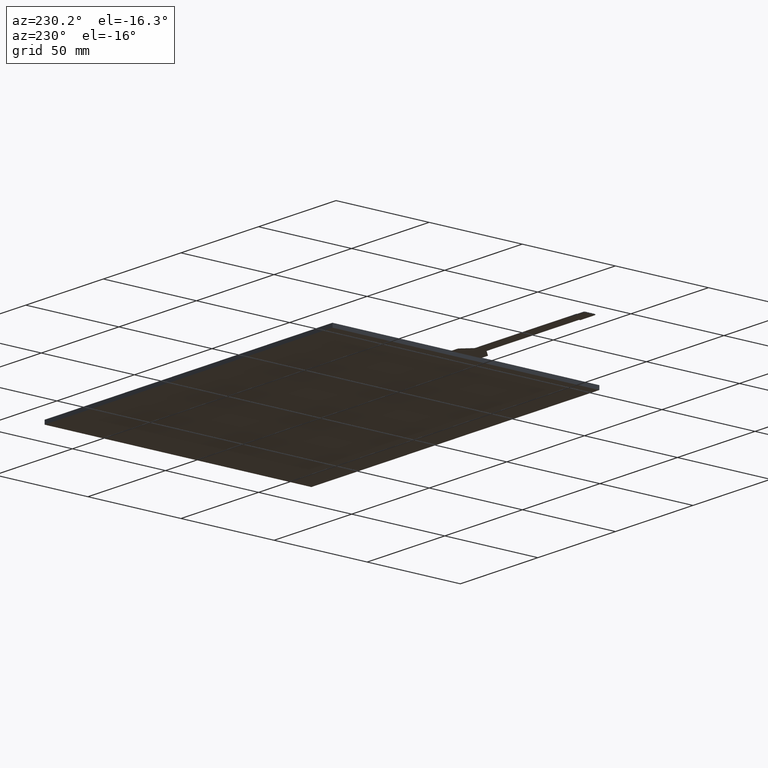
[diagram: clean part render]
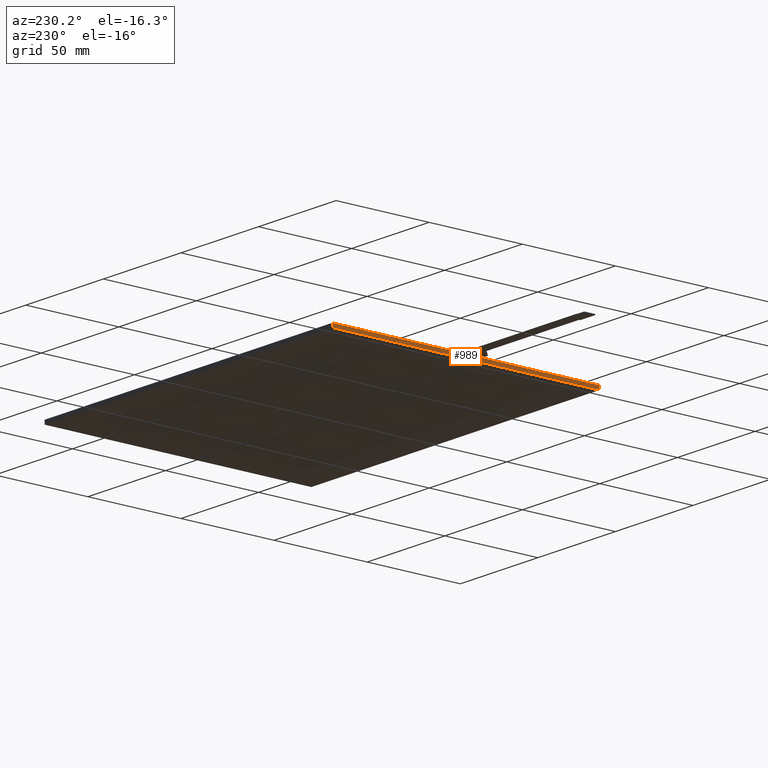
[diagram: same view with one face highlighted and labeled with its STEP entity id]
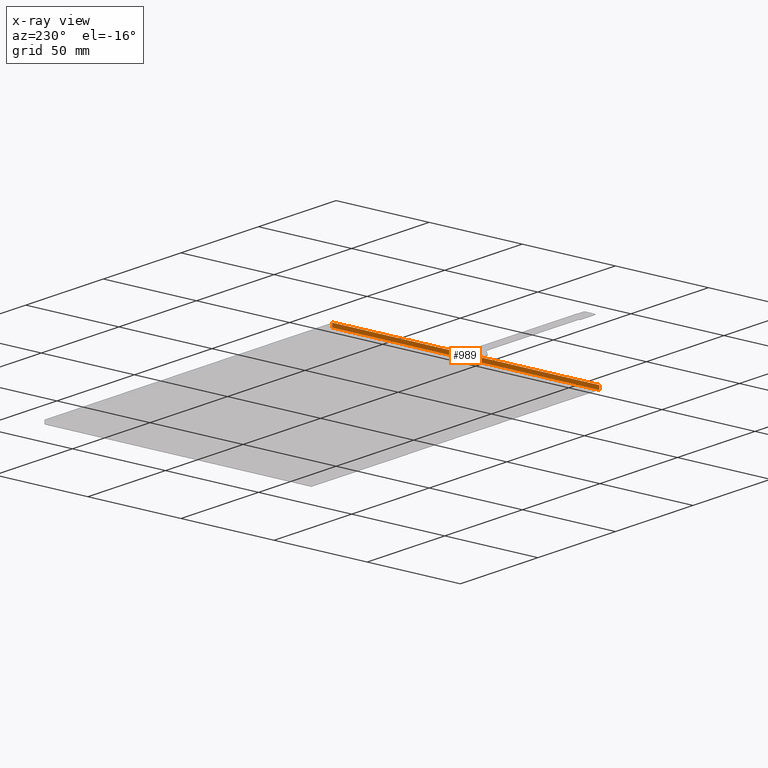
[diagram: x-ray of the same camera — body ghosted, the highlighted face saturated]
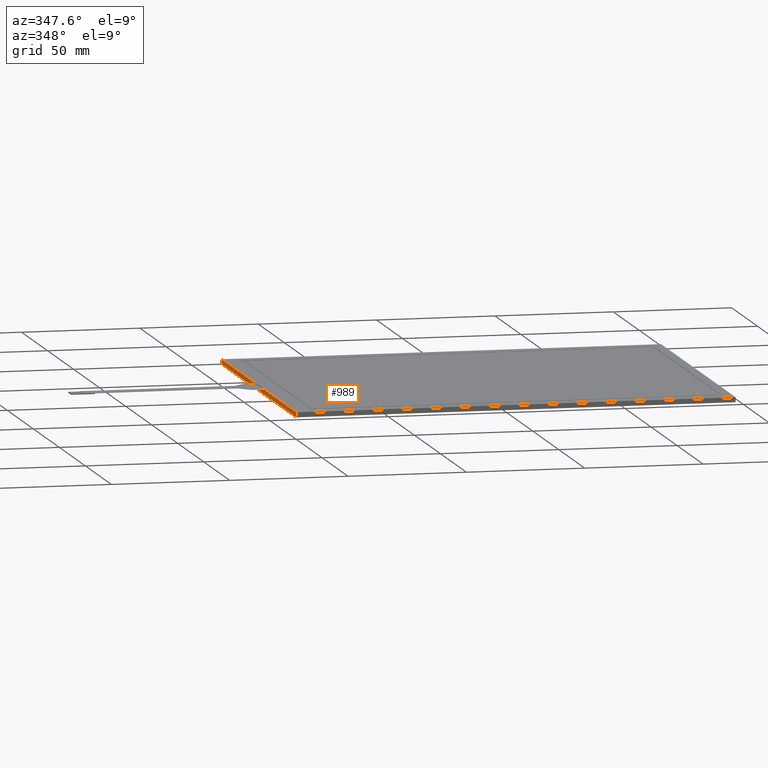
[diagram: same view with one face highlighted and labeled with its STEP entity id]
A machine part, auxiliary view. The second image highlights one B-rep face of the part: STEP entity #989.
The next image is the same camera in x-ray: the body ghosted, the highlighted face saturated — about 0% of this face is hidden behind the body in this view.
A second angle (auxiliary view) of the same face is appended — the face is thin or edge-on in the first view.
In plain terms, the highlighted planar face has unit normal (-1, -0, 0).
Its self-contained STEP definition (entity closure, byte-faithful):
#17=FACE_BOUND('',#162,.T.);
#57=PLANE('',#1072);
#108=FACE_OUTER_BOUND('',#161,.T.);
#161=EDGE_LOOP('',(#910,#911,#912,#913));
#162=EDGE_LOOP('',(#914,#915,#916,#917));
#176=LINE('',#1362,#302);
#192=LINE('',#1399,#318);
#194=LINE('',#1403,#320);
#257=LINE('',#1535,#383);
#283=LINE('',#1592,#409);
#286=LINE('',#1598,#412);
#287=LINE('',#1600,#413);
#288=LINE('',#1601,#414);
#302=VECTOR('',#1102,10.);
#318=VECTOR('',#1136,10.);
#320=VECTOR('',#1140,10.);
#383=VECTOR('',#1259,10.);
#409=VECTOR('',#1309,10.);
#412=VECTOR('',#1314,10.);
#413=VECTOR('',#1315,10.);
#414=VECTOR('',#1316,10.);
#444=VERTEX_POINT('',#1359);
#445=VERTEX_POINT('',#1361);
#457=VERTEX_POINT('',#1397);
#458=VERTEX_POINT('',#1401);
#517=VERTEX_POINT('',#1589);
#518=VERTEX_POINT('',#1591);
#520=VERTEX_POINT('',#1597);
#521=VERTEX_POINT('',#1599);
#537=EDGE_CURVE('',#445,#444,#176,.T.);
#556=EDGE_CURVE('',#444,#457,#192,.T.);
#558=EDGE_CURVE('',#457,#458,#194,.T.);
#625=EDGE_CURVE('',#458,#445,#257,.T.);
#651=EDGE_CURVE('',#517,#518,#283,.T.);
#654=EDGE_CURVE('',#517,#520,#286,.T.);
#655=EDGE_CURVE('',#521,#520,#287,.T.);
#656=EDGE_CURVE('',#518,#521,#288,.T.);
#910=ORIENTED_EDGE('',*,*,#651,.F.);
#911=ORIENTED_EDGE('',*,*,#654,.T.);
#912=ORIENTED_EDGE('',*,*,#655,.F.);
#913=ORIENTED_EDGE('',*,*,#656,.F.);
#914=ORIENTED_EDGE('',*,*,#556,.T.);
#915=ORIENTED_EDGE('',*,*,#558,.T.);
#916=ORIENTED_EDGE('',*,*,#625,.T.);
#917=ORIENTED_EDGE('',*,*,#537,.T.);
#989=ADVANCED_FACE('',(#108,#17),#57,.T.);
#1072=AXIS2_PLACEMENT_3D('',#1596,#1312,#1313);
#1102=DIRECTION('',(2.47921401172401E-16,-1.,0.));
#1136=DIRECTION('',(0.,0.,-1.));
#1140=DIRECTION('',(-2.47921401172401E-16,1.,0.));
#1259=DIRECTION('',(0.,0.,1.));
#1309=DIRECTION('',(2.47921401172401E-16,-1.,0.));
#1312=DIRECTION('center_axis',(-1.,-2.47921401172401E-16,0.));
#1313=DIRECTION('ref_axis',(-2.47921401172401E-16,1.,0.));
#1314=DIRECTION('',(0.,0.,-1.));
#1315=DIRECTION('',(-2.47921401172401E-16,1.,0.));
#1316=DIRECTION('',(0.,0.,-1.));
#1359=CARTESIAN_POINT('',(-93.65,-8.02,-0.188));
#1361=CARTESIAN_POINT('',(-93.65,8.02999999999986,-0.188));
#1362=CARTESIAN_POINT('',(-93.65,-35.8225,-0.188));
#1397=CARTESIAN_POINT('',(-93.65,-8.02,-0.288));
#1399=CARTESIAN_POINT('',(-93.65,-8.02,-0.094));
#1401=CARTESIAN_POINT('',(-93.65,8.02999999999986,-0.288));
#1403=CARTESIAN_POINT('',(-93.65,-35.8225,-0.288));
#1535=CARTESIAN_POINT('',(-93.65,8.02999999999986,-0.094));
#1589=CARTESIAN_POINT('',(-93.65,71.65,0.));
#1591=CARTESIAN_POINT('',(-93.65,-71.65,0.));
#1592=CARTESIAN_POINT('',(-93.65,71.65,0.));
#1596=CARTESIAN_POINT('Origin',(-93.65,-71.65,0.));
#1597=CARTESIAN_POINT('',(-93.65,71.65,-2.1));
#1598=CARTESIAN_POINT('',(-93.65,71.65,0.));
#1599=CARTESIAN_POINT('',(-93.65,-71.65,-2.1));
#1600=CARTESIAN_POINT('',(-93.65,71.65,-2.1));
#1601=CARTESIAN_POINT('',(-93.65,-71.65,0.));